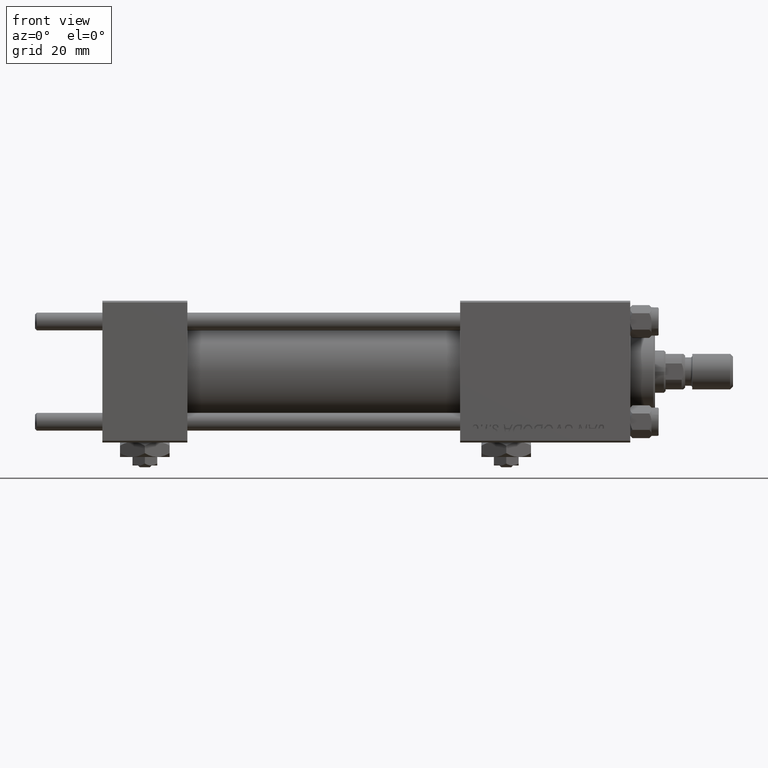
[diagram: clean part render]
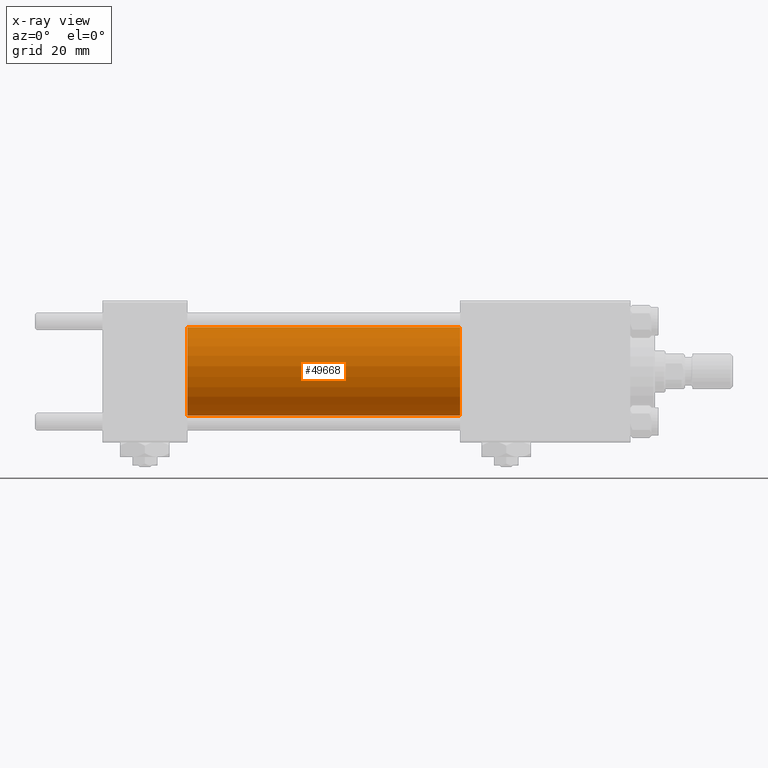
[diagram: x-ray — body ghosted, one internal face saturated and labeled with its STEP entity id]
A machine part, front view, then the same camera in x-ray: the body is ghosted and one INTERNAL B-rep face — a face not visible from any outside direction — is saturated and labeled: STEP entity #49668.
In plain terms, the highlighted cylindrical surface (partial cylindrical patch) has radius 12.5 mm, axis along (-1, -0, -0).
Its self-contained STEP definition (entity closure, byte-faithful):
#60 = CIRCLE ( 'NONE', #11908, 12.49999999999999645 ) ;
#1067 = EDGE_CURVE ( 'NONE', #17339, #14137, #31981, .T. ) ;
#1841 = ORIENTED_EDGE ( 'NONE', *, *, #1067, .F. ) ;
#2014 = CARTESIAN_POINT ( 'NONE',  ( 101.0000000000000000, 0.000000000000000000, 12.49999999999999645 ) ) ;
#2856 = EDGE_CURVE ( 'NONE', #35931, #14415, #12757, .T. ) ;
#3261 = DIRECTION ( 'NONE',  ( 0.000000000000000000, 0.000000000000000000, -1.000000000000000000 ) ) ;
#11730 = CARTESIAN_POINT ( 'NONE',  ( 101.0000000000000000, 1.530808498934191127E-15, -12.49999999999999645 ) ) ;
#11889 = CARTESIAN_POINT ( 'NONE',  ( 101.0000000000000000, 0.000000000000000000, 12.49999999999999645 ) ) ;
#11908 = AXIS2_PLACEMENT_3D ( 'NONE', #13502, #34110, #33594 ) ;
#12383 = ORIENTED_EDGE ( 'NONE', *, *, #46555, .T. ) ;
#12757 = LINE ( 'NONE', #33117, #26510 ) ;
#13502 = CARTESIAN_POINT ( 'NONE',  ( 24.00000000000000000, 0.000000000000000000, 0.000000000000000000 ) ) ;
#14137 = VERTEX_POINT ( 'NONE', #40342 ) ;
#14335 = AXIS2_PLACEMENT_3D ( 'NONE', #34731, #31799, #3261 ) ;
#14415 = VERTEX_POINT ( 'NONE', #27873 ) ;
#17339 = VERTEX_POINT ( 'NONE', #2014 ) ;
#22370 = EDGE_CURVE ( 'NONE', #14137, #14415, #60, .T. ) ;
#24572 = AXIS2_PLACEMENT_3D ( 'NONE', #39516, #40036, #48755 ) ;
#26510 = VECTOR ( 'NONE', #49484, 1000.000000000000000 ) ;
#27766 = ORIENTED_EDGE ( 'NONE', *, *, #2856, .T. ) ;
#27873 = CARTESIAN_POINT ( 'NONE',  ( 24.00000000000000000, 1.530808498934191127E-15, -12.49999999999999645 ) ) ;
#28427 = CYLINDRICAL_SURFACE ( 'NONE', #24572, 12.49999999999999645 ) ;
#28811 = DIRECTION ( 'NONE',  ( -1.000000000000000000, -0.000000000000000000, -0.000000000000000000 ) ) ;
#31799 = DIRECTION ( 'NONE',  ( 1.000000000000000000, 0.000000000000000000, 0.000000000000000000 ) ) ;
#31981 = LINE ( 'NONE', #11889, #50203 ) ;
#33117 = CARTESIAN_POINT ( 'NONE',  ( 101.0000000000000000, 1.530808498934191127E-15, -12.49999999999999645 ) ) ;
#33594 = DIRECTION ( 'NONE',  ( 0.000000000000000000, 0.000000000000000000, -1.000000000000000000 ) ) ;
#34110 = DIRECTION ( 'NONE',  ( 1.000000000000000000, 0.000000000000000000, 0.000000000000000000 ) ) ;
#34731 = CARTESIAN_POINT ( 'NONE',  ( 101.0000000000000000, 0.000000000000000000, 0.000000000000000000 ) ) ;
#35931 = VERTEX_POINT ( 'NONE', #11730 ) ;
#37143 = CIRCLE ( 'NONE', #14335, 12.49999999999999645 ) ;
#38527 = EDGE_LOOP ( 'NONE', ( #12383, #27766, #39345, #1841 ) ) ;
#39345 = ORIENTED_EDGE ( 'NONE', *, *, #22370, .F. ) ;
#39516 = CARTESIAN_POINT ( 'NONE',  ( 101.0000000000000000, 0.000000000000000000, 0.000000000000000000 ) ) ;
#40036 = DIRECTION ( 'NONE',  ( -1.000000000000000000, -0.000000000000000000, -0.000000000000000000 ) ) ;
#40342 = CARTESIAN_POINT ( 'NONE',  ( 24.00000000000000000, 0.000000000000000000, 12.49999999999999645 ) ) ;
#46555 = EDGE_CURVE ( 'NONE', #17339, #35931, #37143, .T. ) ;
#48228 = FACE_OUTER_BOUND ( 'NONE', #38527, .T. ) ;
#48755 = DIRECTION ( 'NONE',  ( 0.000000000000000000, 0.000000000000000000, 1.000000000000000000 ) ) ;
#49484 = DIRECTION ( 'NONE',  ( -1.000000000000000000, -0.000000000000000000, -0.000000000000000000 ) ) ;
#49668 = ADVANCED_FACE ( 'NONE', ( #48228 ), #28427, .F. ) ;
#50203 = VECTOR ( 'NONE', #28811, 1000.000000000000000 ) ;